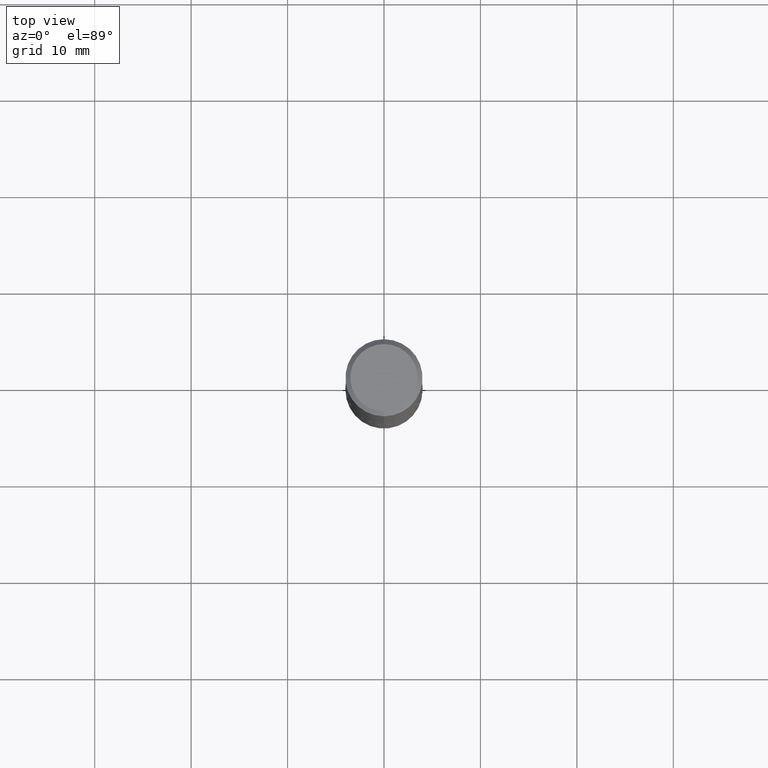
[diagram: clean part render]
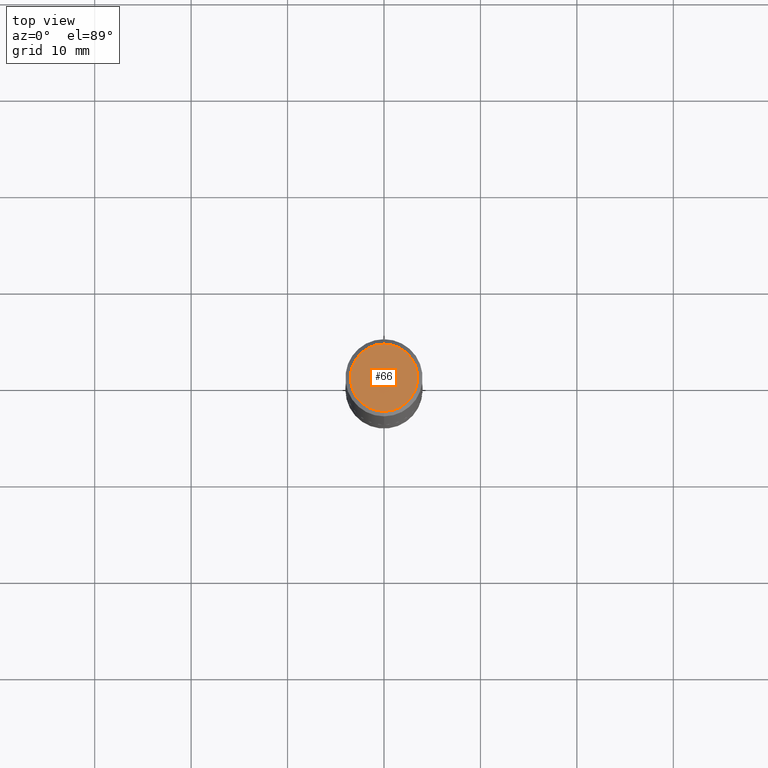
[diagram: same view with one face highlighted and labeled with its STEP entity id]
A machine part, top view. The second image highlights one B-rep face of the part: STEP entity #66.
In plain terms, the highlighted planar face has unit normal (0, -0, -1).
Its self-contained STEP definition (entity closure, byte-faithful):
#12 = VERTEX_POINT ( 'NONE', #174 ) ;
#35 = DIRECTION ( 'NONE',  ( 2.444729828315543719E-29, -3.492539597212410327E-15, -1.000000000000000000 ) ) ;
#44 = EDGE_CURVE ( 'NONE', #12, #240, #308, .T. ) ;
#60 = DIRECTION ( 'NONE',  ( -6.982962677686265922E-15, -1.000000000000000000, 3.492539597212410327E-15 ) ) ;
#66 = ADVANCED_FACE ( 'NONE', ( #98 ), #194, .F. ) ;
#74 = AXIS2_PLACEMENT_3D ( 'NONE', #153, #349, #185 ) ;
#98 = FACE_OUTER_BOUND ( 'NONE', #208, .T. ) ;
#115 = ORIENTED_EDGE ( 'NONE', *, *, #192, .T. ) ;
#124 = CARTESIAN_POINT ( 'NONE',  ( -6.786541213832790321E-45, 9.695248793097192351E-31, 2.775988223823005522E-16 ) ) ;
#130 = CARTESIAN_POINT ( 'NONE',  ( 9.601573681818597005E-16, 0.1374999999999997335, -3.414247834255550788E-16 ) ) ;
#139 = ORIENTED_EDGE ( 'NONE', *, *, #44, .T. ) ;
#153 = CARTESIAN_POINT ( 'NONE',  ( -6.786541213832790321E-45, 9.695248793097192351E-31, 2.775988223823005522E-16 ) ) ;
#174 = CARTESIAN_POINT ( 'NONE',  ( -1.011923454671299856E-15, -0.1374999999999997335, 7.578230169990059811E-16 ) ) ;
#182 = CARTESIAN_POINT ( 'NONE',  ( 1.029986994958723590E-15, 0.1374999999999997335, -2.026253722344048274E-16 ) ) ;
#185 = DIRECTION ( 'NONE',  ( -6.982962677686265922E-15, -1.000000000000000000, 3.492539597212410327E-15 ) ) ;
#192 = EDGE_CURVE ( 'NONE', #240, #12, #416, .T. ) ;
#194 = PLANE ( 'NONE',  #359 ) ;
#208 = EDGE_LOOP ( 'NONE', ( #115, #139 ) ) ;
#214 = DIRECTION ( 'NONE',  ( -2.444729828315544280E-29, 3.492539597212409932E-15, 1.000000000000000000 ) ) ;
#240 = VERTEX_POINT ( 'NONE', #182 ) ;
#242 = AXIS2_PLACEMENT_3D ( 'NONE', #124, #214, #60 ) ;
#298 = DIRECTION ( 'NONE',  ( 6.982962677686265922E-15, 1.000000000000000000, -3.492539597212410327E-15 ) ) ;
#308 = CIRCLE ( 'NONE', #242, 0.1374999999999997335 ) ;
#349 = DIRECTION ( 'NONE',  ( -2.444729828315544280E-29, 3.492539597212409932E-15, 1.000000000000000000 ) ) ;
#359 = AXIS2_PLACEMENT_3D ( 'NONE', #130, #35, #298 ) ;
#416 = CIRCLE ( 'NONE', #74, 0.1374999999999997335 ) ;